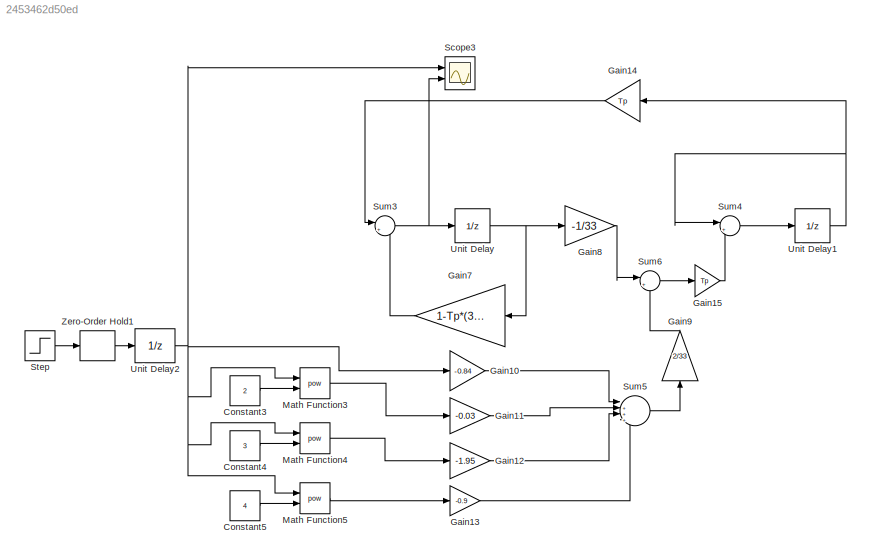
MODEL slx_2453462d50ed
KIND model
CONFIG AbsTol = auto
CONFIG EnableMultiTasking = off
CONFIG FixedStep = auto
CONFIG MaxStep = auto
CONFIG MinStep = auto
CONFIG RelTol = 1e-3
CONFIG SampleTimeConstraint = Unconstrained
CONFIG Solver = VariableStepAuto
CONFIG SolverName = VariableStepAuto
CONFIG StartTime = 0.0
CONFIG StopTime = 10.0
BLOCK [Constant] Constant3
  Value = 2
BLOCK [Constant] Constant4
  Value = 3
BLOCK [Constant] Constant5
  Value = 4
BLOCK [Gain] Gain10
  Gain = -0.84
  OutDataTypeStr = Inherit: Inherit via internal rule
  ParamDataTypeStr = Inherit: Inherit via internal rule
  SaturateOnIntegerOverflow = off
BLOCK [Gain] Gain11
  Gain = -0.03
  OutDataTypeStr = Inherit: Inherit via internal rule
  ParamDataTypeStr = Inherit: Inherit via internal rule
  SaturateOnIntegerOverflow = off
BLOCK [Gain] Gain12
  Gain = -1.95
  OutDataTypeStr = Inherit: Inherit via internal rule
  ParamDataTypeStr = Inherit: Inherit via internal rule
  SaturateOnIntegerOverflow = off
BLOCK [Gain] Gain13
  Gain = -0.9
  OutDataTypeStr = Inherit: Inherit via internal rule
  ParamDataTypeStr = Inherit: Inherit via internal rule
  SaturateOnIntegerOverflow = off
BLOCK [Gain] Gain14
  Gain = Tp
  OutDataTypeStr = Inherit: Inherit via internal rule
  ParamDataTypeStr = double
  SaturateOnIntegerOverflow = off
BLOCK [Gain] Gain15
  Gain = Tp
  OutDataTypeStr = Inherit: Inherit via internal rule
  ParamDataTypeStr = Inherit: Inherit via internal rule
  SaturateOnIntegerOverflow = off
BLOCK [Gain] Gain7
  Gain = 1-Tp*(3+11)/33
  OutDataTypeStr = Inherit: Inherit via internal rule
  ParamDataTypeStr = double
  SaturateOnIntegerOverflow = off
BLOCK [Gain] Gain8
  Gain = -1/33
  OutDataTypeStr = Inherit: Inherit via internal rule
  ParamDataTypeStr = Inherit: Inherit via internal rule
  SaturateOnIntegerOverflow = off
BLOCK [Gain] Gain9
  Gain = 2/33
  OutDataTypeStr = Inherit: Inherit via internal rule
  ParamDataTypeStr = Inherit: Inherit via internal rule
  SaturateOnIntegerOverflow = off
BLOCK [Math] Math Function3
  Operator = pow
  Ports = [2, 1]
BLOCK [Math] Math Function4
  Operator = pow
  Ports = [2, 1]
BLOCK [Math] Math Function5
  Operator = pow
  Ports = [2, 1]
BLOCK [Scope] Scope3
  NumInputPorts = 2
  Ports = [2]
  ScopeSpecificationString = Simulink.scopes.TimeScopeBlockCfg('CurrentConfiguration', extmgr.ConfigurationSet(extmgr.Configuration('Core','General UI',true),extmgr.Configuration('Core','Source UI',true),extmgr.Configuration('Sources','WiredSimulink',true,'DataLoggingVariableName','ScopeData2'),extmgr.Configuration('Visuals','Time Domain',true,'SerializedDisplays',{struct('MinYLimReal','-1.73436','MaxYLimReal','1.30382','YLab...<+1830ch>
BLOCK [Step] Step
  SampleTime = 0
BLOCK [Sum] Sum3
  IconShape = round
  InputSameDT = off
  Inputs = |++
  OutDataTypeStr = Inherit: Inherit via internal rule
  Ports = [2, 1]
  SaturateOnIntegerOverflow = off
BLOCK [Sum] Sum4
  IconShape = round
  InputSameDT = off
  Inputs = |++
  OutDataTypeStr = Inherit: Inherit via internal rule
  Ports = [2, 1]
  SaturateOnIntegerOverflow = off
BLOCK [Sum] Sum5
  IconShape = round
  InputSameDT = off
  Inputs = |++++
  OutDataTypeStr = Inherit: Inherit via internal rule
  Ports = [4, 1]
  SaturateOnIntegerOverflow = off
BLOCK [Sum] Sum6
  IconShape = round
  InputSameDT = off
  Inputs = |++
  OutDataTypeStr = Inherit: Inherit via internal rule
  Ports = [2, 1]
  SaturateOnIntegerOverflow = off
BLOCK [UnitDelay] Unit Delay
  InputProcessing = Elements as channels (sample based)
  SampleTime = Tp
BLOCK [UnitDelay] Unit Delay1
  InputProcessing = Elements as channels (sample based)
  SampleTime = Tp
BLOCK [UnitDelay] Unit Delay2
  InputProcessing = Elements as channels (sample based)
  SampleTime = Tp
BLOCK [ZeroOrderHold] Zero-Order Hold1
  SampleTime = Tp
LINE Constant3:1 -> Math Function3:2
LINE Constant4:1 -> Math Function4:2
LINE Constant5:1 -> Math Function5:2
LINE Gain10:1 -> Sum5:1
LINE Gain11:1 -> Sum5:2
LINE Gain12:1 -> Sum5:3
LINE Gain13:1 -> Sum5:4
LINE Gain14:1 -> Sum3:1
LINE Gain15:1 -> Sum4:2
LINE Gain7:1 -> Sum3:2
LINE Gain8:1 -> Sum6:1
LINE Gain9:1 -> Sum6:2
LINE Math Function3:1 -> Gain11:1
LINE Math Function4:1 -> Gain12:1
LINE Math Function5:1 -> Gain13:1
LINE Step:1 -> Zero-Order Hold1:1
NET Sum3:1 -> Scope3:2, Unit Delay:1
LINE Sum4:1 -> Unit Delay1:1
LINE Sum5:1 -> Gain9:1
LINE Sum6:1 -> Gain15:1
NET Unit Delay1:1 -> Gain14:1, Sum4:1
NET Unit Delay2:1 -> Gain10:1, Math Function3:1, Math Function4:1, Math Function5:1, Scope3:1
NET Unit Delay:1 -> Gain7:1, Gain8:1
LINE Zero-Order Hold1:1 -> Unit Delay2:1
note: NET lines group one-source signal fan-out (src -> all destinations, sorted); 1:1 wires keep LINE
